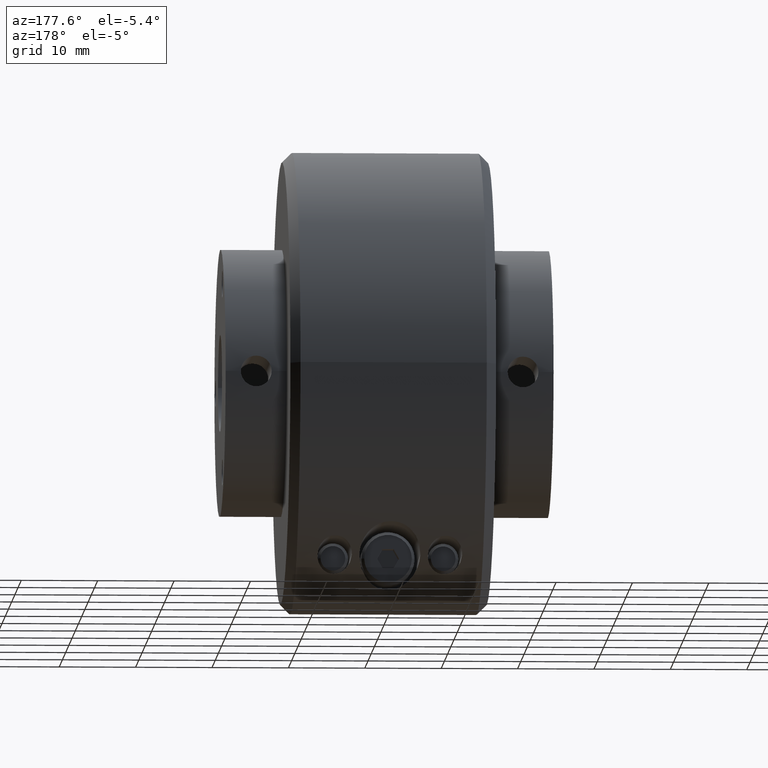
[diagram: clean part render]
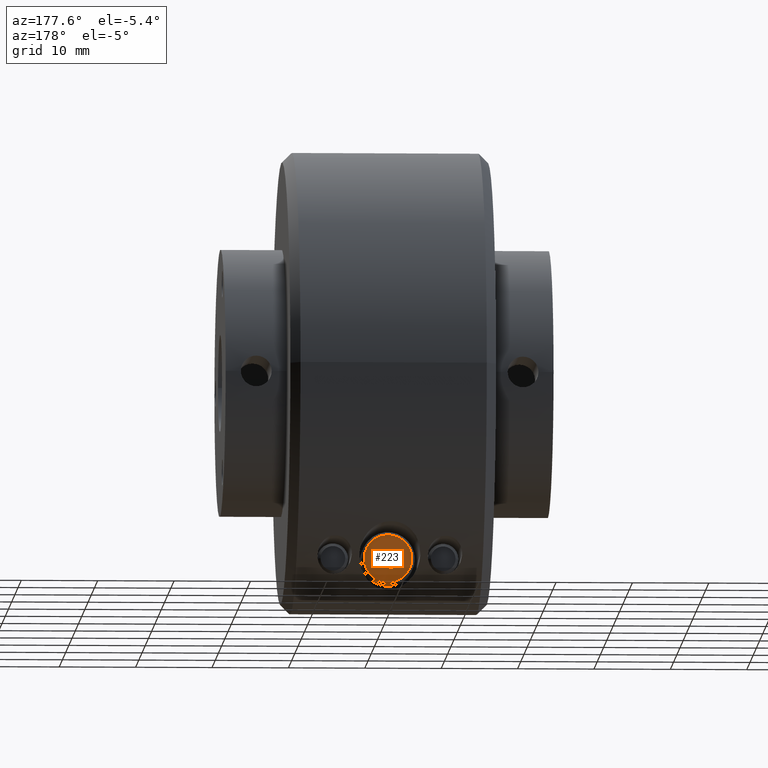
[diagram: same view with one face highlighted and labeled with its STEP entity id]
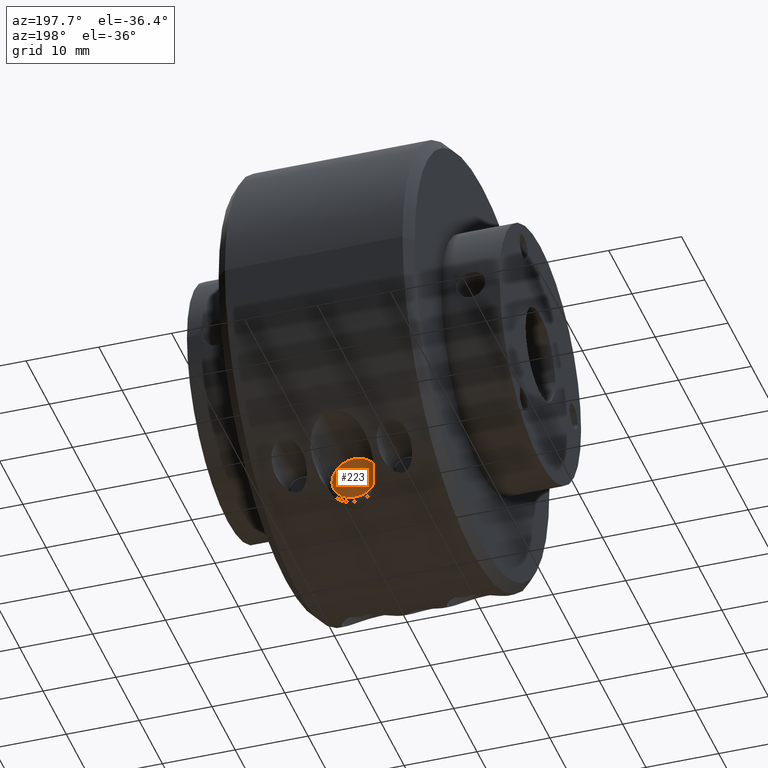
[diagram: same view with one face highlighted and labeled with its STEP entity id]
A machine part, auxiliary view. The second image highlights one B-rep face of the part: STEP entity #223.
A second angle (auxiliary view) of the same face is appended — the face is thin or edge-on in the first view.
In plain terms, the highlighted planar face has unit normal (-0, 1, 0).
Its self-contained STEP definition (entity closure, byte-faithful):
#9 = ORIENTED_EDGE ( 'NONE', *, *, #1679, .F. ) ;
#68 = ORIENTED_EDGE ( 'NONE', *, *, #1678, .F. ) ;
#87 = ORIENTED_EDGE ( 'NONE', *, *, #1660, .T. ) ;
#88 = ORIENTED_EDGE ( 'NONE', *, *, #1674, .F. ) ;
#117 = ORIENTED_EDGE ( 'NONE', *, *, #1680, .F. ) ;
#133 = ORIENTED_EDGE ( 'NONE', *, *, #1682, .T. ) ;
#166 = ORIENTED_EDGE ( 'NONE', *, *, #1677, .F. ) ;
#168 = ORIENTED_EDGE ( 'NONE', *, *, #1659, .F. ) ;
#223 = ADVANCED_FACE ( 'NONE', ( #2048, #2055 ), #553, .T. ) ;
#550 = DIRECTION ( 'NONE',  ( -1.000000000000000000, -1.024442997624098800E-016, 0.0000000000000000000 ) ) ;
#551 = DIRECTION ( 'NONE',  ( -1.024442997624098800E-016, 1.000000000000000000, 0.0000000000000000000 ) ) ;
#553 = PLANE ( 'NONE',  #1875 ) ;
#554 = CARTESIAN_POINT ( 'NONE',  ( 1.822870281655268200E-017, 0.4968503937007873700, -0.9499999999999999600 ) ) ;
#699 = VERTEX_POINT ( 'NONE', #1444 ) ;
#700 = VERTEX_POINT ( 'NONE', #1453 ) ;
#719 = VERTEX_POINT ( 'NONE', #1472 ) ;
#726 = VERTEX_POINT ( 'NONE', #1479 ) ;
#770 = VERTEX_POINT ( 'NONE', #1515 ) ;
#780 = VERTEX_POINT ( 'NONE', #1520 ) ;
#795 = VERTEX_POINT ( 'NONE', #1529 ) ;
#932 = VERTEX_POINT ( 'NONE', #1604 ) ;
#1444 = CARTESIAN_POINT ( 'NONE',  ( -0.1227952755905513000, 0.4968503937007873700, -0.9499999999999999600 ) ) ;
#1453 = CARTESIAN_POINT ( 'NONE',  ( 0.05682581389661655500, 0.4968503937007873700, -0.9499999999999999600 ) ) ;
#1472 = CARTESIAN_POINT ( 'NONE',  ( 0.02841290694830826300, 0.4968503937007873700, -0.9992125984251967200 ) ) ;
#1479 = CARTESIAN_POINT ( 'NONE',  ( 0.02841290694830821100, 0.4968503937007873700, -0.9007874015748031900 ) ) ;
#1515 = CARTESIAN_POINT ( 'NONE',  ( -0.05682581389661650600, 0.4968503937007873700, -0.9500000000000000700 ) ) ;
#1520 = CARTESIAN_POINT ( 'NONE',  ( -0.02841290694830824300, 0.4968503937007873700, -0.9992125984251967200 ) ) ;
#1529 = CARTESIAN_POINT ( 'NONE',  ( 0.1227952755905513300, 0.4968503937007873700, -0.9499999999999999600 ) ) ;
#1604 = CARTESIAN_POINT ( 'NONE',  ( -0.02841290694830815900, 0.4968503937007873700, -0.9007874015748031900 ) ) ;
#1659 = EDGE_CURVE ( 'NONE', #932, #726, #2225, .T. ) ;
#1660 = EDGE_CURVE ( 'NONE', #699, #795, #2229, .T. ) ;
#1674 = EDGE_CURVE ( 'NONE', #780, #770, #2244, .T. ) ;
#1677 = EDGE_CURVE ( 'NONE', #719, #780, #2250, .T. ) ;
#1678 = EDGE_CURVE ( 'NONE', #726, #700, #2253, .T. ) ;
#1679 = EDGE_CURVE ( 'NONE', #700, #719, #2249, .T. ) ;
#1680 = EDGE_CURVE ( 'NONE', #770, #932, #2241, .T. ) ;
#1682 = EDGE_CURVE ( 'NONE', #795, #699, #2478, .T. ) ;
#1875 = AXIS2_PLACEMENT_3D ( 'NONE', #554, #551, #550 ) ;
#2048 = FACE_BOUND ( 'NONE', #3734, .T. ) ;
#2055 = FACE_OUTER_BOUND ( 'NONE', #3746, .T. ) ;
#2225 = LINE ( 'NONE', #3382, #2226 ) ;
#2226 = VECTOR ( 'NONE', #3376, 39.37007874015748100 ) ;
#2229 = CIRCLE ( 'NONE', #2352, 0.1227952755905513000 ) ;
#2241 = LINE ( 'NONE', #3107, #2471 ) ;
#2244 = LINE ( 'NONE', #3167, #2246 ) ;
#2246 = VECTOR ( 'NONE', #3166, 39.37007874015748900 ) ;
#2249 = LINE ( 'NONE', #3112, #2470 ) ;
#2250 = LINE ( 'NONE', #3131, #2251 ) ;
#2251 = VECTOR ( 'NONE', #3130, 39.37007874015748100 ) ;
#2253 = LINE ( 'NONE', #3160, #2905 ) ;
#2352 = AXIS2_PLACEMENT_3D ( 'NONE', #3375, #3373, #3366 ) ;
#2363 = AXIS2_PLACEMENT_3D ( 'NONE', #3079, #3074, #3073 ) ;
#2470 = VECTOR ( 'NONE', #3104, 39.37007874015748900 ) ;
#2471 = VECTOR ( 'NONE', #3096, 39.37007874015748900 ) ;
#2478 = CIRCLE ( 'NONE', #2363, 0.1227952755905513000 ) ;
#2905 = VECTOR ( 'NONE', #3108, 39.37007874015748900 ) ;
#3073 = DIRECTION ( 'NONE',  ( -1.000000000000000000, 0.0000000000000000000, 0.0000000000000000000 ) ) ;
#3074 = DIRECTION ( 'NONE',  ( -1.024442997624098700E-016, 1.000000000000000000, 0.0000000000000000000 ) ) ;
#3079 = CARTESIAN_POINT ( 'NONE',  ( 1.822870281655268200E-017, 0.4968503937007873700, -0.9499999999999999600 ) ) ;
#3096 = DIRECTION ( 'NONE',  ( 0.4999999999999995600, 0.0000000000000000000, 0.8660254037844388200 ) ) ;
#3104 = DIRECTION ( 'NONE',  ( -0.4999999999999998300, 0.0000000000000000000, -0.8660254037844386000 ) ) ;
#3107 = CARTESIAN_POINT ( 'NONE',  ( -0.05682581389661650600, 0.4968503937007873700, -0.9500000000000000700 ) ) ;
#3108 = DIRECTION ( 'NONE',  ( 0.5000000000000004400, 0.0000000000000000000, -0.8660254037844382600 ) ) ;
#3112 = CARTESIAN_POINT ( 'NONE',  ( 0.05682581389661655500, 0.4968503937007873700, -0.9499999999999999600 ) ) ;
#3130 = DIRECTION ( 'NONE',  ( -1.000000000000000000, 0.0000000000000000000, 0.0000000000000000000 ) ) ;
#3131 = CARTESIAN_POINT ( 'NONE',  ( 0.02841290694830825300, 0.4968503937007873700, -0.9992125984251967200 ) ) ;
#3160 = CARTESIAN_POINT ( 'NONE',  ( 0.02841290694830821100, 0.4968503937007873700, -0.9007874015748031900 ) ) ;
#3166 = DIRECTION ( 'NONE',  ( -0.5000000000000005600, 0.0000000000000000000, 0.8660254037844382600 ) ) ;
#3167 = CARTESIAN_POINT ( 'NONE',  ( -0.02841290694830824300, 0.4968503937007873700, -0.9992125984251967200 ) ) ;
#3366 = DIRECTION ( 'NONE',  ( -1.000000000000000000, 0.0000000000000000000, 0.0000000000000000000 ) ) ;
#3373 = DIRECTION ( 'NONE',  ( -1.024442997624098700E-016, 1.000000000000000000, 0.0000000000000000000 ) ) ;
#3375 = CARTESIAN_POINT ( 'NONE',  ( 1.822870281655268200E-017, 0.4968503937007873700, -0.9499999999999999600 ) ) ;
#3376 = DIRECTION ( 'NONE',  ( 1.000000000000000000, 0.0000000000000000000, 0.0000000000000000000 ) ) ;
#3382 = CARTESIAN_POINT ( 'NONE',  ( -0.02841290694830815900, 0.4968503937007873700, -0.9007874015748031900 ) ) ;
#3734 = EDGE_LOOP ( 'NONE', ( #9, #68, #168, #117, #88, #166 ) ) ;
#3746 = EDGE_LOOP ( 'NONE', ( #133, #87 ) ) ;